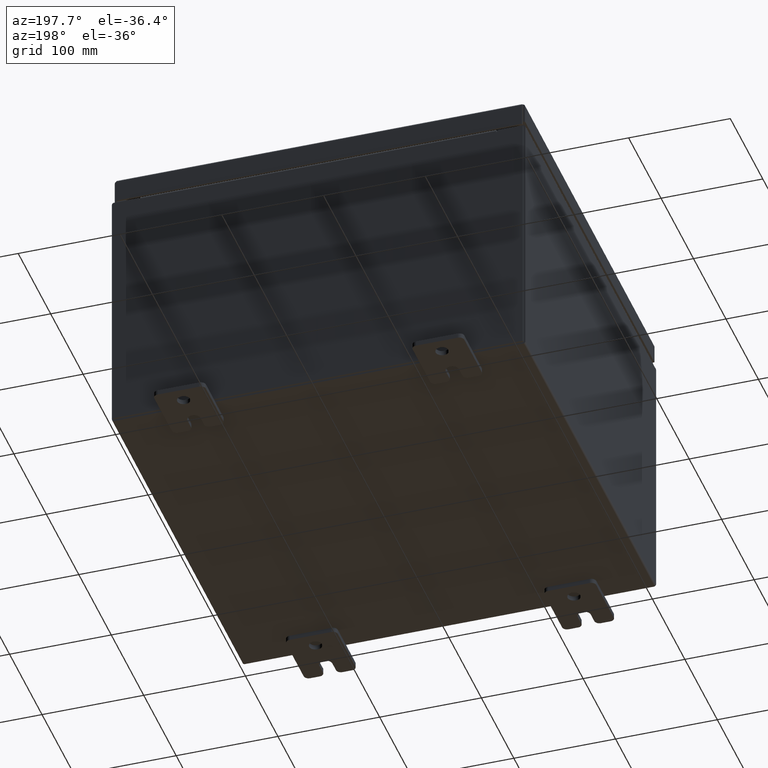
[diagram: clean part render]
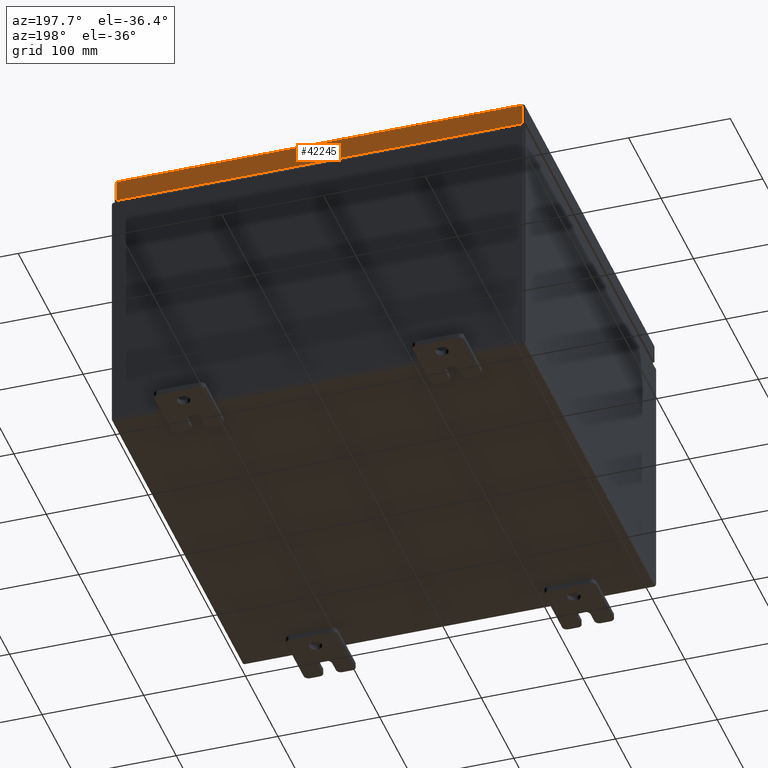
[diagram: same view with one face highlighted and labeled with its STEP entity id]
A machine part, auxiliary view. The second image highlights one B-rep face of the part: STEP entity #42245.
In plain terms, the highlighted planar face has unit normal (0, -1, -0).
Its self-contained STEP definition (entity closure, byte-faithful):
#467 = ORIENTED_EDGE ( 'NONE', *, *, #32600, .F. ) ;
#2007 = PLANE ( 'NONE',  #50621 ) ;
#2418 = CARTESIAN_POINT ( 'NONE',  ( 7.848657864376269400, 7.937500000000000000, 3.041243838330248100E-014 ) ) ;
#4750 = DIRECTION ( 'NONE',  ( 1.000000000000000000, -0.0000000000000000000, 1.290636847400439300E-016 ) ) ;
#6394 = VECTOR ( 'NONE', #7307, 39.37007874015748100 ) ;
#6909 = DIRECTION ( 'NONE',  ( 4.902651701673304100E-031, -1.000000000000000000, -3.798629886902790100E-015 ) ) ;
#7307 = DIRECTION ( 'NONE',  ( 0.0000000000000000000, 3.798629886902790100E-015, -1.000000000000000000 ) ) ;
#8393 = CARTESIAN_POINT ( 'NONE',  ( -7.848657864376269400, 7.937500000000000000, -0.07469999999999972500 ) ) ;
#9860 = EDGE_CURVE ( 'NONE', #17012, #11511, #41426, .T. ) ;
#10831 = FACE_OUTER_BOUND ( 'NONE', #12182, .T. ) ;
#11298 = VECTOR ( 'NONE', #59830, 39.37007874015748100 ) ;
#11511 = VERTEX_POINT ( 'NONE', #43754 ) ;
#12182 = EDGE_LOOP ( 'NONE', ( #467, #30196, #36749, #61194 ) ) ;
#12760 = CARTESIAN_POINT ( 'NONE',  ( -7.848657864376269400, 7.937500000000003600, -0.9377000000000018700 ) ) ;
#12815 = LINE ( 'NONE', #54944, #11298 ) ;
#15826 = VECTOR ( 'NONE', #4750, 39.37007874015748100 ) ;
#17012 = VERTEX_POINT ( 'NONE', #12760 ) ;
#18264 = EDGE_CURVE ( 'NONE', #26797, #17012, #31108, .T. ) ;
#19401 = CARTESIAN_POINT ( 'NONE',  ( -7.937500000000000000, 7.937500000000003600, -0.9377000000000018700 ) ) ;
#20798 = LINE ( 'NONE', #2418, #6394 ) ;
#26797 = VERTEX_POINT ( 'NONE', #46389 ) ;
#30196 = ORIENTED_EDGE ( 'NONE', *, *, #38869, .T. ) ;
#31108 = LINE ( 'NONE', #8393, #52179 ) ;
#32456 = DIRECTION ( 'NONE',  ( -0.0000000000000000000, 3.798629886902790100E-015, -1.000000000000000000 ) ) ;
#32600 = EDGE_CURVE ( 'NONE', #42119, #26797, #12815, .T. ) ;
#35803 = CARTESIAN_POINT ( 'NONE',  ( -3.891479788203184800E-030, 7.937500000000000000, 3.041243838330248100E-014 ) ) ;
#36749 = ORIENTED_EDGE ( 'NONE', *, *, #9860, .F. ) ;
#38869 = EDGE_CURVE ( 'NONE', #42119, #11511, #20798, .T. ) ;
#40642 = DIRECTION ( 'NONE',  ( 0.0000000000000000000, 3.798629886902790100E-015, -1.000000000000000000 ) ) ;
#41426 = LINE ( 'NONE', #19401, #15826 ) ;
#42119 = VERTEX_POINT ( 'NONE', #49724 ) ;
#42245 = ADVANCED_FACE ( 'NONE', ( #10831 ), #2007, .F. ) ;
#43754 = CARTESIAN_POINT ( 'NONE',  ( 7.848657864376269400, 7.937500000000003600, -0.9376999999999996400 ) ) ;
#46389 = CARTESIAN_POINT ( 'NONE',  ( -7.848657864376269400, 7.937500000000000000, -0.08769999999999997200 ) ) ;
#49724 = CARTESIAN_POINT ( 'NONE',  ( 7.848657864376269400, 7.937500000000000000, -0.08769999999999997200 ) ) ;
#50621 = AXIS2_PLACEMENT_3D ( 'NONE', #35803, #6909, #40642 ) ;
#52179 = VECTOR ( 'NONE', #32456, 39.37007874015748100 ) ;
#54944 = CARTESIAN_POINT ( 'NONE',  ( -7.937500000000000000, 7.937500000000000000, -0.08769999999999997200 ) ) ;
#59830 = DIRECTION ( 'NONE',  ( -1.000000000000000000, -4.902651701673304100E-031, -1.880652595880180800E-045 ) ) ;
#61194 = ORIENTED_EDGE ( 'NONE', *, *, #18264, .F. ) ;